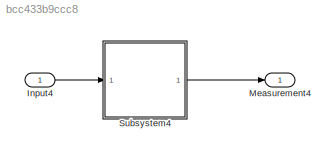
MODEL slx_bcc433b9ccc8
KIND model
CONFIG AbsTol = auto
CONFIG EnableMultiTasking = off
CONFIG FixedStep = 1e-06
CONFIG MaxStep = auto
CONFIG MinStep = auto
CONFIG RelTol = 1e-3
CONFIG SampleTimeConstraint = Unconstrained
CONFIG SolverName = FixedStepAuto
CONFIG StartTime = 0.0
CONFIG StopTime = 10.0
BLOCK [Inport] Input4
  OutDataTypeStr = Bus: bus7
BLOCK [Outport] Measurement4
  OutDataTypeStr = Bus: slBus1
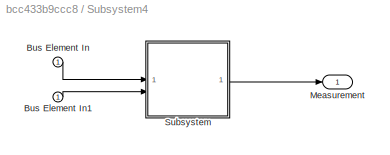
BLOCK [SubSystem] Subsystem4
BLOCK [Inport] Subsystem4/Bus Element In
BLOCK [Inport] Subsystem4/Bus Element In1
BLOCK [Outport] Subsystem4/Measurement
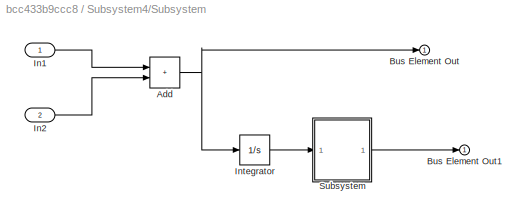
BLOCK [SubSystem] Subsystem4/Subsystem
BLOCK [Sum] Subsystem4/Subsystem/Add
  IconShape = rectangular
BLOCK [Outport] Subsystem4/Subsystem/Bus Element Out
BLOCK [Outport] Subsystem4/Subsystem/Bus Element Out1
BLOCK [Inport] Subsystem4/Subsystem/In1
BLOCK [Inport] Subsystem4/Subsystem/In2
  Port = 2
BLOCK [Integrator] Subsystem4/Subsystem/Integrator
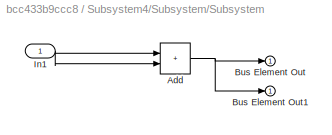
BLOCK [SubSystem] Subsystem4/Subsystem/Subsystem
BLOCK [Sum] Subsystem4/Subsystem/Subsystem/Add
  IconShape = rectangular
BLOCK [Outport] Subsystem4/Subsystem/Subsystem/Bus Element Out
BLOCK [Outport] Subsystem4/Subsystem/Subsystem/Bus Element Out1
BLOCK [Inport] Subsystem4/Subsystem/Subsystem/In1
LINE Input4:1 -> Subsystem4:1
LINE Subsystem4/Bus Element In1:1 -> Subsystem4/Subsystem:2
LINE Subsystem4/Bus Element In:1 -> Subsystem4/Subsystem:1
NET Subsystem4/Subsystem/Add:1 -> Subsystem4/Subsystem/Bus Element Out:1, Subsystem4/Subsystem/Integrator:1
LINE Subsystem4/Subsystem/In1:1 -> Subsystem4/Subsystem/Add:1
LINE Subsystem4/Subsystem/In2:1 -> Subsystem4/Subsystem/Add:2
LINE Subsystem4/Subsystem/Integrator:1 -> Subsystem4/Subsystem/Subsystem:1
NET Subsystem4/Subsystem/Subsystem/Add:1 -> Subsystem4/Subsystem/Subsystem/Bus Element Out1:1, Subsystem4/Subsystem/Subsystem/Bus Element Out:1
NET Subsystem4/Subsystem/Subsystem/In1:1 -> Subsystem4/Subsystem/Subsystem/Add:1, Subsystem4/Subsystem/Subsystem/Add:2
LINE Subsystem4/Subsystem/Subsystem:1 -> Subsystem4/Subsystem/Bus Element Out1:1
LINE Subsystem4/Subsystem:1 -> Subsystem4/Measurement:1
LINE Subsystem4:1 -> Measurement4:1
note: NET lines group one-source signal fan-out (src -> all destinations, sorted); 1:1 wires keep LINE
